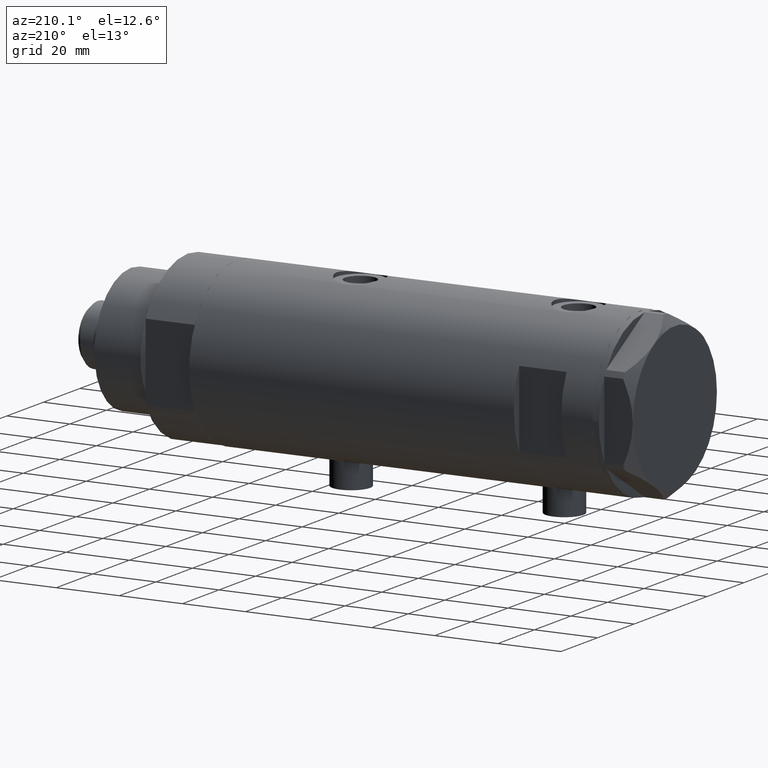
[diagram: clean part render]
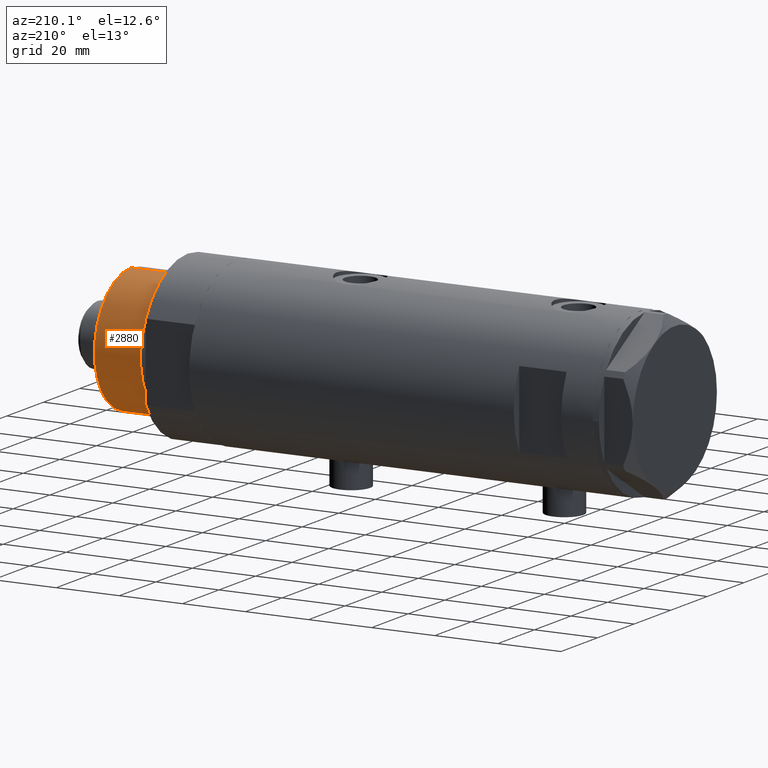
[diagram: same view with one face highlighted and labeled with its STEP entity id]
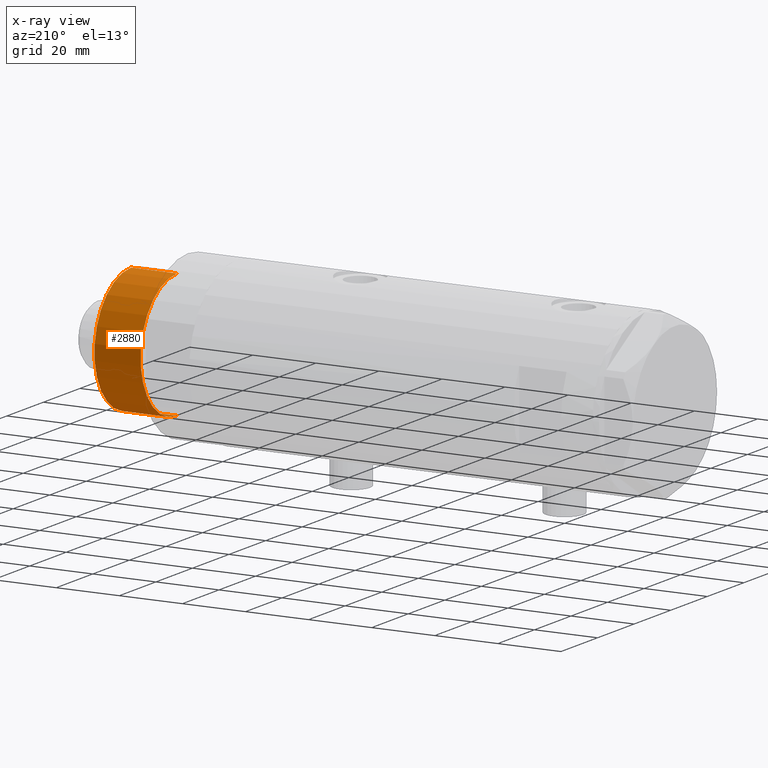
[diagram: x-ray of the same camera — body ghosted, the highlighted face saturated]
A machine part, auxiliary view. The second image highlights one B-rep face of the part: STEP entity #2880.
The next image is the same camera in x-ray: the body ghosted, the highlighted face saturated — about 0% of this face is hidden behind the body in this view.
In plain terms, the highlighted cylindrical surface (partial cylindrical patch) has radius 20 mm, axis along (-1, -0, 0).
Its self-contained STEP definition (entity closure, byte-faithful):
#16 = ORIENTED_EDGE ( 'NONE', *, *, #598, .T. ) ;
#108 = AXIS2_PLACEMENT_3D ( 'NONE', #1610, #2399, #4648 ) ;
#193 = ORIENTED_EDGE ( 'NONE', *, *, #2034, .F. ) ;
#385 = DIRECTION ( 'NONE',  ( 1.000000000000000000, 0.000000000000000000, 0.000000000000000000 ) ) ;
#556 = VECTOR ( 'NONE', #860, 1000.000000000000000 ) ;
#558 = CARTESIAN_POINT ( 'NONE',  ( 19.99999999999999645, 2.449293598294706119E-15, 33.50000000000000000 ) ) ;
#598 = EDGE_CURVE ( 'NONE', #2552, #613, #3135, .T. ) ;
#606 = CARTESIAN_POINT ( 'NONE',  ( 19.99999999999999645, 2.449293598294706119E-15, 18.87384048104053846 ) ) ;
#613 = VERTEX_POINT ( 'NONE', #606 ) ;
#849 = EDGE_LOOP ( 'NONE', ( #2857, #16, #3511, #193 ) ) ;
#860 = DIRECTION ( 'NONE',  ( -0.000000000000000000, -0.000000000000000000, -1.000000000000000000 ) ) ;
#1023 = AXIS2_PLACEMENT_3D ( 'NONE', #3041, #3432, #385 ) ;
#1279 = EDGE_CURVE ( 'NONE', #2552, #1364, #3957, .T. ) ;
#1300 = CARTESIAN_POINT ( 'NONE',  ( 19.99999999999999645, 2.449293598294706119E-15, 33.50000000000000000 ) ) ;
#1364 = VERTEX_POINT ( 'NONE', #4628 ) ;
#1429 = LINE ( 'NONE', #1451, #4028 ) ;
#1451 = CARTESIAN_POINT ( 'NONE',  ( -19.99999999999999645, 0.000000000000000000, 33.50000000000000000 ) ) ;
#1596 = CIRCLE ( 'NONE', #108, 19.99999999999999645 ) ;
#1610 = CARTESIAN_POINT ( 'NONE',  ( 0.000000000000000000, 0.000000000000000000, 18.87384048104053846 ) ) ;
#1815 = DIRECTION ( 'NONE',  ( -0.000000000000000000, -0.000000000000000000, -1.000000000000000000 ) ) ;
#1843 = DIRECTION ( 'NONE',  ( -1.000000000000000000, 0.000000000000000000, 0.000000000000000000 ) ) ;
#1864 = CARTESIAN_POINT ( 'NONE',  ( 0.000000000000000000, 0.000000000000000000, 33.50000000000000000 ) ) ;
#2026 = VERTEX_POINT ( 'NONE', #3736 ) ;
#2034 = EDGE_CURVE ( 'NONE', #1364, #2026, #1429, .T. ) ;
#2184 = DIRECTION ( 'NONE',  ( -0.000000000000000000, -0.000000000000000000, -1.000000000000000000 ) ) ;
#2249 = FACE_OUTER_BOUND ( 'NONE', #849, .T. ) ;
#2399 = DIRECTION ( 'NONE',  ( -0.000000000000000000, -0.000000000000000000, 1.000000000000000000 ) ) ;
#2552 = VERTEX_POINT ( 'NONE', #558 ) ;
#2640 = CYLINDRICAL_SURFACE ( 'NONE', #3252, 19.99999999999999645 ) ;
#2857 = ORIENTED_EDGE ( 'NONE', *, *, #1279, .F. ) ;
#2880 = ADVANCED_FACE ( 'NONE', ( #2249 ), #2640, .T. ) ;
#3041 = CARTESIAN_POINT ( 'NONE',  ( 0.000000000000000000, 0.000000000000000000, 33.50000000000000000 ) ) ;
#3135 = LINE ( 'NONE', #1300, #556 ) ;
#3252 = AXIS2_PLACEMENT_3D ( 'NONE', #1864, #1815, #1843 ) ;
#3432 = DIRECTION ( 'NONE',  ( 0.000000000000000000, 0.000000000000000000, 1.000000000000000000 ) ) ;
#3511 = ORIENTED_EDGE ( 'NONE', *, *, #4285, .T. ) ;
#3736 = CARTESIAN_POINT ( 'NONE',  ( -19.99999999999999645, 0.000000000000000000, 18.87384048104053846 ) ) ;
#3957 = CIRCLE ( 'NONE', #1023, 19.99999999999999645 ) ;
#4028 = VECTOR ( 'NONE', #2184, 1000.000000000000000 ) ;
#4285 = EDGE_CURVE ( 'NONE', #613, #2026, #1596, .T. ) ;
#4628 = CARTESIAN_POINT ( 'NONE',  ( -19.99999999999999645, 0.000000000000000000, 33.50000000000000000 ) ) ;
#4648 = DIRECTION ( 'NONE',  ( 1.000000000000000000, 0.000000000000000000, 0.000000000000000000 ) ) ;